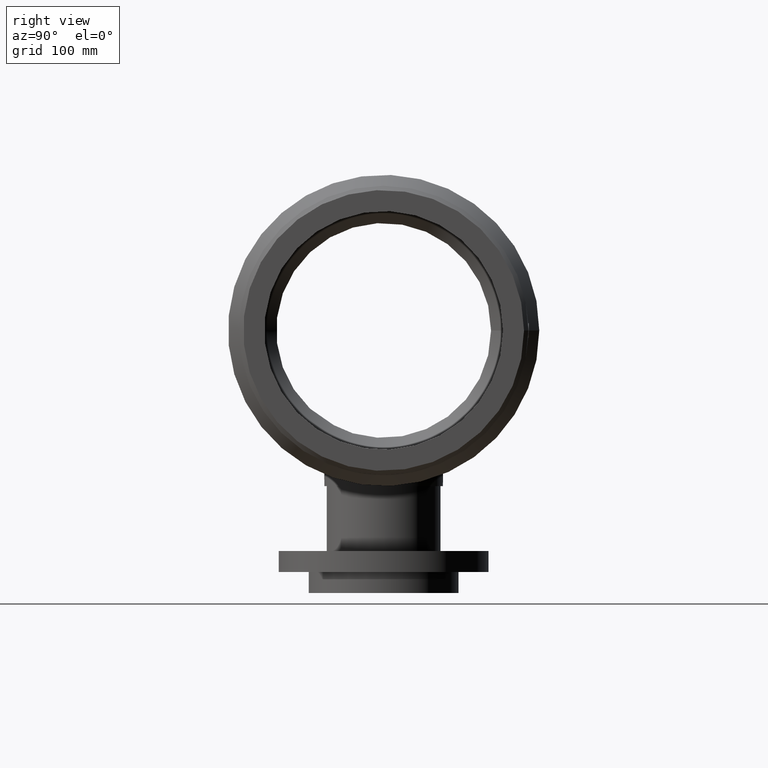
[diagram: clean part render]
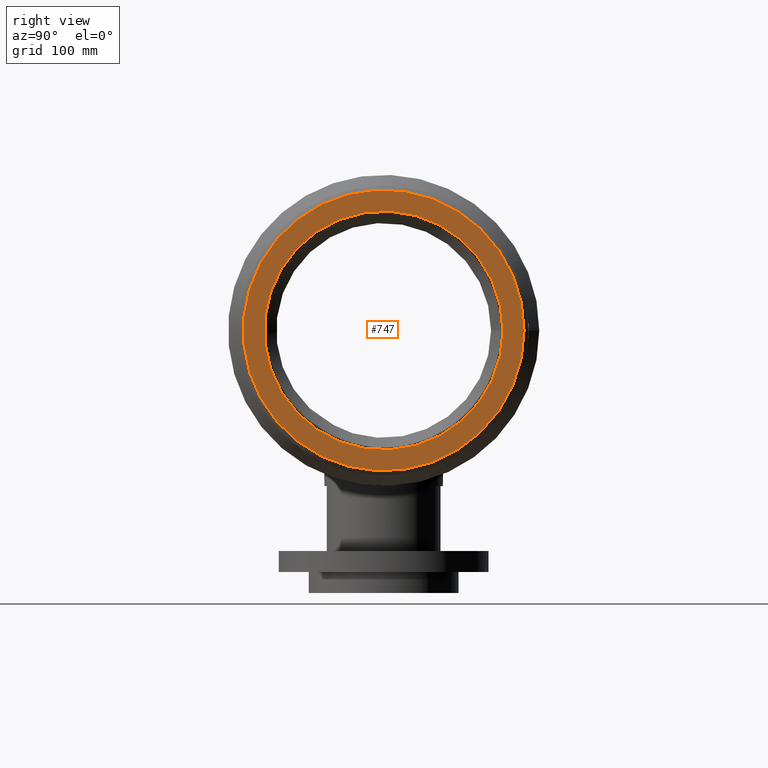
[diagram: same view with one face highlighted and labeled with its STEP entity id]
A machine part, right view. The second image highlights one B-rep face of the part: STEP entity #747.
In plain terms, the highlighted planar face has unit normal (1, 0, 0).
Its self-contained STEP definition (entity closure, byte-faithful):
#41=PLANE('',#861);
#108=FACE_BOUND('',#388,.T.);
#173=CIRCLE('',#860,147.0423);
#174=CIRCLE('',#862,125.);
#263=FACE_OUTER_BOUND('',#387,.T.);
#387=EDGE_LOOP('',(#673));
#388=EDGE_LOOP('',(#674));
#476=VERTEX_POINT('',#1690);
#477=VERTEX_POINT('',#1693);
#546=EDGE_CURVE('',#476,#476,#173,.T.);
#547=EDGE_CURVE('',#477,#477,#174,.T.);
#673=ORIENTED_EDGE('',*,*,#546,.T.);
#674=ORIENTED_EDGE('',*,*,#547,.F.);
#747=ADVANCED_FACE('',(#263,#108),#41,.T.);
#860=AXIS2_PLACEMENT_3D('',#1691,#1085,#1086);
#861=AXIS2_PLACEMENT_3D('',#1692,#1087,#1088);
#862=AXIS2_PLACEMENT_3D('',#1694,#1089,#1090);
#1085=DIRECTION('center_axis',(1.,0.,0.));
#1086=DIRECTION('ref_axis',(0.,0.,-1.));
#1087=DIRECTION('center_axis',(1.,0.,0.));
#1088=DIRECTION('ref_axis',(0.,0.,-1.));
#1089=DIRECTION('center_axis',(1.,0.,0.));
#1090=DIRECTION('ref_axis',(0.,0.,-1.));
#1690=CARTESIAN_POINT('',(269.,147.0423,0.));
#1691=CARTESIAN_POINT('Origin',(269.,0.,0.));
#1692=CARTESIAN_POINT('Origin',(269.,125.,0.));
#1693=CARTESIAN_POINT('',(269.,125.,0.));
#1694=CARTESIAN_POINT('Origin',(269.,0.,0.));